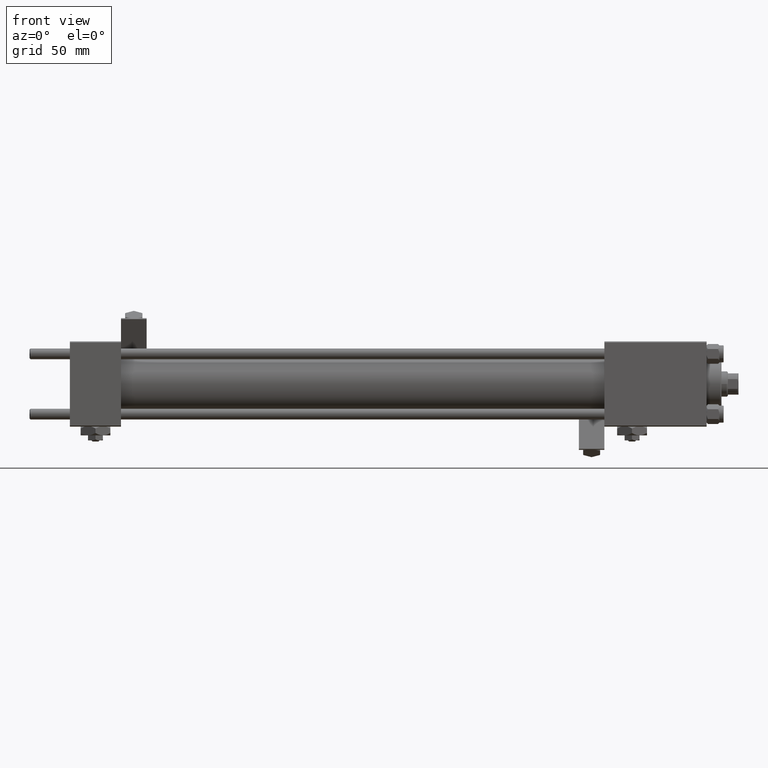
[diagram: clean part render]
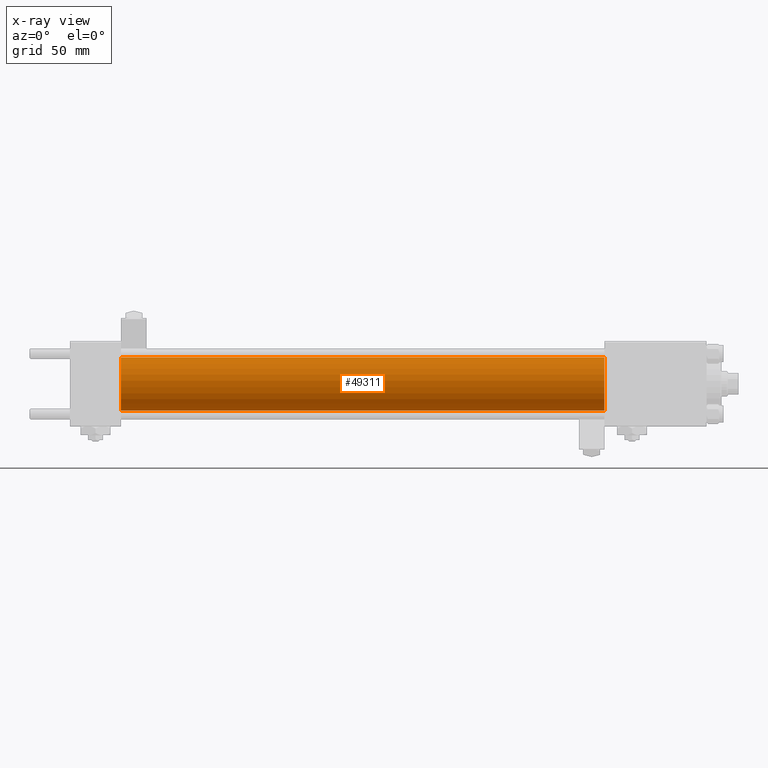
[diagram: x-ray — body ghosted, one internal face saturated and labeled with its STEP entity id]
A machine part, front view, then the same camera in x-ray: the body is ghosted and one INTERNAL B-rep face — a face not visible from any outside direction — is saturated and labeled: STEP entity #49311.
In plain terms, the highlighted cylindrical surface (edge-blend (fillet) strip) has radius 12.5 mm, axis along (-1, -0, -0).
Its self-contained STEP definition (entity closure, byte-faithful):
#480 = DIRECTION ( 'NONE',  ( -1.000000000000000000, -0.000000000000000000, -0.000000000000000000 ) ) ;
#654 = EDGE_CURVE ( 'NONE', #2654, #18993, #43701, .T. ) ;
#1406 = ORIENTED_EDGE ( 'NONE', *, *, #16905, .T. ) ;
#2654 = VERTEX_POINT ( 'NONE', #40287 ) ;
#3256 = CARTESIAN_POINT ( 'NONE',  ( 251.0000000000000000, 0.000000000000000000, 0.000000000000000000 ) ) ;
#4480 = CARTESIAN_POINT ( 'NONE',  ( 251.0000000000000000, 0.000000000000000000, 12.49999999999999645 ) ) ;
#6305 = CARTESIAN_POINT ( 'NONE',  ( 251.0000000000000000, 1.530808498934190732E-15, -12.49999999999999645 ) ) ;
#7302 = EDGE_CURVE ( 'NONE', #18028, #36916, #35087, .T. ) ;
#9722 = DIRECTION ( 'NONE',  ( 1.000000000000000000, 0.000000000000000000, 0.000000000000000000 ) ) ;
#9988 = DIRECTION ( 'NONE',  ( 0.000000000000000000, 0.000000000000000000, -1.000000000000000000 ) ) ;
#10446 = AXIS2_PLACEMENT_3D ( 'NONE', #27023, #23270, #34789 ) ;
#12936 = CARTESIAN_POINT ( 'NONE',  ( 251.0000000000000000, 0.000000000000000000, 0.000000000000000000 ) ) ;
#15330 = ORIENTED_EDGE ( 'NONE', *, *, #7302, .T. ) ;
#16905 = EDGE_CURVE ( 'NONE', #36916, #18993, #52840, .T. ) ;
#18028 = VERTEX_POINT ( 'NONE', #52846 ) ;
#18974 = VECTOR ( 'NONE', #480, 1000.000000000000000 ) ;
#18993 = VERTEX_POINT ( 'NONE', #40120 ) ;
#23270 = DIRECTION ( 'NONE',  ( 1.000000000000000000, 0.000000000000000000, 0.000000000000000000 ) ) ;
#23819 = DIRECTION ( 'NONE',  ( -1.000000000000000000, -0.000000000000000000, -0.000000000000000000 ) ) ;
#27023 = CARTESIAN_POINT ( 'NONE',  ( 24.00000000000000000, 0.000000000000000000, 0.000000000000000000 ) ) ;
#27303 = CYLINDRICAL_SURFACE ( 'NONE', #50562, 12.49999999999999645 ) ;
#27568 = FACE_OUTER_BOUND ( 'NONE', #28021, .T. ) ;
#28021 = EDGE_LOOP ( 'NONE', ( #15330, #1406, #31092, #51083 ) ) ;
#31092 = ORIENTED_EDGE ( 'NONE', *, *, #654, .F. ) ;
#34789 = DIRECTION ( 'NONE',  ( 0.000000000000000000, 0.000000000000000000, -1.000000000000000000 ) ) ;
#35087 = CIRCLE ( 'NONE', #37652, 12.49999999999999645 ) ;
#36916 = VERTEX_POINT ( 'NONE', #6305 ) ;
#37652 = AXIS2_PLACEMENT_3D ( 'NONE', #12936, #9722, #9988 ) ;
#39318 = DIRECTION ( 'NONE',  ( 0.000000000000000000, 0.000000000000000000, 1.000000000000000000 ) ) ;
#40120 = CARTESIAN_POINT ( 'NONE',  ( 24.00000000000000000, 1.530808498934190732E-15, -12.49999999999999645 ) ) ;
#40287 = CARTESIAN_POINT ( 'NONE',  ( 24.00000000000000000, 0.000000000000000000, 12.49999999999999645 ) ) ;
#43701 = CIRCLE ( 'NONE', #10446, 12.49999999999999645 ) ;
#45693 = VECTOR ( 'NONE', #46333, 1000.000000000000000 ) ;
#46333 = DIRECTION ( 'NONE',  ( -1.000000000000000000, -0.000000000000000000, -0.000000000000000000 ) ) ;
#46543 = EDGE_CURVE ( 'NONE', #18028, #2654, #49637, .T. ) ;
#49094 = CARTESIAN_POINT ( 'NONE',  ( 251.0000000000000000, 1.530808498934190732E-15, -12.49999999999999645 ) ) ;
#49311 = ADVANCED_FACE ( 'NONE', ( #27568 ), #27303, .F. ) ;
#49637 = LINE ( 'NONE', #4480, #18974 ) ;
#50562 = AXIS2_PLACEMENT_3D ( 'NONE', #3256, #23819, #39318 ) ;
#51083 = ORIENTED_EDGE ( 'NONE', *, *, #46543, .F. ) ;
#52840 = LINE ( 'NONE', #49094, #45693 ) ;
#52846 = CARTESIAN_POINT ( 'NONE',  ( 251.0000000000000000, 0.000000000000000000, 12.49999999999999645 ) ) ;